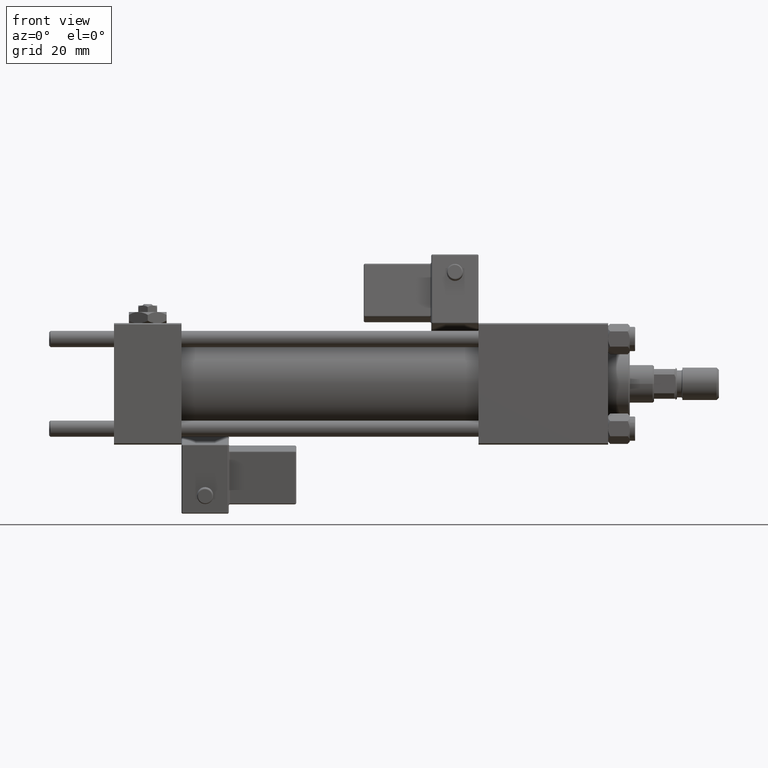
[diagram: clean part render]
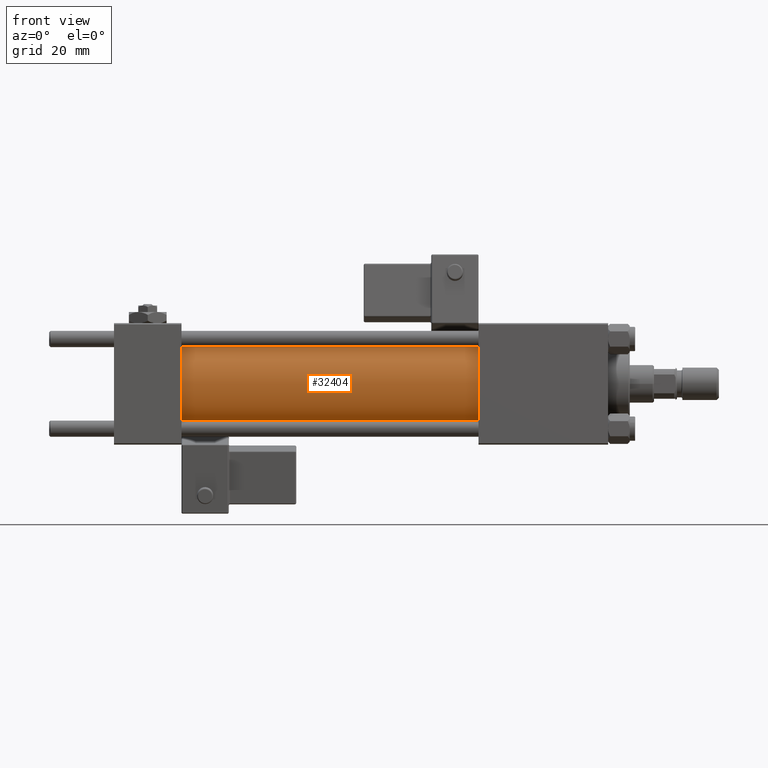
[diagram: same view with one face highlighted and labeled with its STEP entity id]
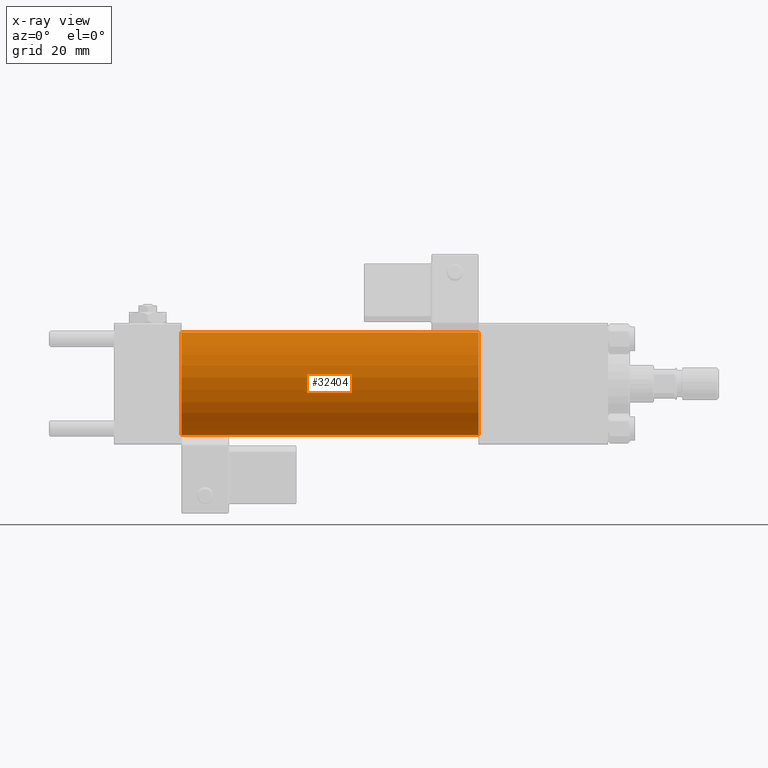
[diagram: x-ray of the same camera — body ghosted, the highlighted face saturated]
A machine part, front view. The second image highlights one B-rep face of the part: STEP entity #32404.
The next image is the same camera in x-ray: the body ghosted, the highlighted face saturated — about 0% of this face is hidden behind the body in this view.
In plain terms, the highlighted cylindrical surface (partial cylindrical patch) has radius 19 mm, axis along (-1, -0, -0).
Its self-contained STEP definition (entity closure, byte-faithful):
#182 = CARTESIAN_POINT ( 'NONE',  ( 24.99999999999999289, 0.000000000000000000, 19.00000000000000000 ) ) ;
#2417 = FACE_OUTER_BOUND ( 'NONE', #12409, .T. ) ;
#6018 = EDGE_CURVE ( 'NONE', #42099, #20303, #43069, .T. ) ;
#6805 = CYLINDRICAL_SURFACE ( 'NONE', #30884, 19.00000000000000000 ) ;
#9645 = CARTESIAN_POINT ( 'NONE',  ( 135.0000000000000000, 0.000000000000000000, 0.000000000000000000 ) ) ;
#10698 = LINE ( 'NONE', #10986, #53778 ) ;
#10986 = CARTESIAN_POINT ( 'NONE',  ( 135.0000000000000000, 0.000000000000000000, 19.00000000000000000 ) ) ;
#12409 = EDGE_LOOP ( 'NONE', ( #41219, #23538, #50222, #18602 ) ) ;
#14775 = CARTESIAN_POINT ( 'NONE',  ( 135.0000000000000000, 0.000000000000000000, 0.000000000000000000 ) ) ;
#14809 = EDGE_CURVE ( 'NONE', #20303, #22903, #16818, .T. ) ;
#16818 = LINE ( 'NONE', #33837, #51305 ) ;
#18602 = ORIENTED_EDGE ( 'NONE', *, *, #48506, .T. ) ;
#20001 = CIRCLE ( 'NONE', #49711, 19.00000000000000000 ) ;
#20303 = VERTEX_POINT ( 'NONE', #23645 ) ;
#22675 = CARTESIAN_POINT ( 'NONE',  ( 24.99999999999999289, 2.326828918379970970E-15, -19.00000000000000000 ) ) ;
#22903 = VERTEX_POINT ( 'NONE', #22675 ) ;
#23538 = ORIENTED_EDGE ( 'NONE', *, *, #6018, .F. ) ;
#23645 = CARTESIAN_POINT ( 'NONE',  ( 135.0000000000000000, 2.326828918379970970E-15, -19.00000000000000000 ) ) ;
#27390 = DIRECTION ( 'NONE',  ( 0.000000000000000000, 0.000000000000000000, 1.000000000000000000 ) ) ;
#29878 = AXIS2_PLACEMENT_3D ( 'NONE', #9645, #30238, #38498 ) ;
#30238 = DIRECTION ( 'NONE',  ( 1.000000000000000000, 0.000000000000000000, 0.000000000000000000 ) ) ;
#30884 = AXIS2_PLACEMENT_3D ( 'NONE', #14775, #31515, #27390 ) ;
#31515 = DIRECTION ( 'NONE',  ( -1.000000000000000000, -0.000000000000000000, -0.000000000000000000 ) ) ;
#31599 = CARTESIAN_POINT ( 'NONE',  ( 24.99999999999999289, 0.000000000000000000, 0.000000000000000000 ) ) ;
#32404 = ADVANCED_FACE ( 'NONE', ( #2417 ), #6805, .T. ) ;
#32421 = DIRECTION ( 'NONE',  ( 1.000000000000000000, -0.000000000000000000, 0.000000000000000000 ) ) ;
#33837 = CARTESIAN_POINT ( 'NONE',  ( 135.0000000000000000, 2.326828918379970970E-15, -19.00000000000000000 ) ) ;
#36681 = EDGE_CURVE ( 'NONE', #42099, #54334, #10698, .T. ) ;
#38498 = DIRECTION ( 'NONE',  ( 0.000000000000000000, 0.000000000000000000, -1.000000000000000000 ) ) ;
#40372 = DIRECTION ( 'NONE',  ( -1.000000000000000000, -0.000000000000000000, -0.000000000000000000 ) ) ;
#41219 = ORIENTED_EDGE ( 'NONE', *, *, #14809, .F. ) ;
#42089 = DIRECTION ( 'NONE',  ( -1.000000000000000000, -0.000000000000000000, -0.000000000000000000 ) ) ;
#42099 = VERTEX_POINT ( 'NONE', #47124 ) ;
#43069 = CIRCLE ( 'NONE', #29878, 19.00000000000000000 ) ;
#47124 = CARTESIAN_POINT ( 'NONE',  ( 135.0000000000000000, 0.000000000000000000, 19.00000000000000000 ) ) ;
#48506 = EDGE_CURVE ( 'NONE', #54334, #22903, #20001, .T. ) ;
#49711 = AXIS2_PLACEMENT_3D ( 'NONE', #31599, #32421, #53326 ) ;
#50222 = ORIENTED_EDGE ( 'NONE', *, *, #36681, .T. ) ;
#51305 = VECTOR ( 'NONE', #42089, 1000.000000000000000 ) ;
#53326 = DIRECTION ( 'NONE',  ( 0.000000000000000000, 0.000000000000000000, 1.000000000000000000 ) ) ;
#53778 = VECTOR ( 'NONE', #40372, 1000.000000000000000 ) ;
#54334 = VERTEX_POINT ( 'NONE', #182 ) ;